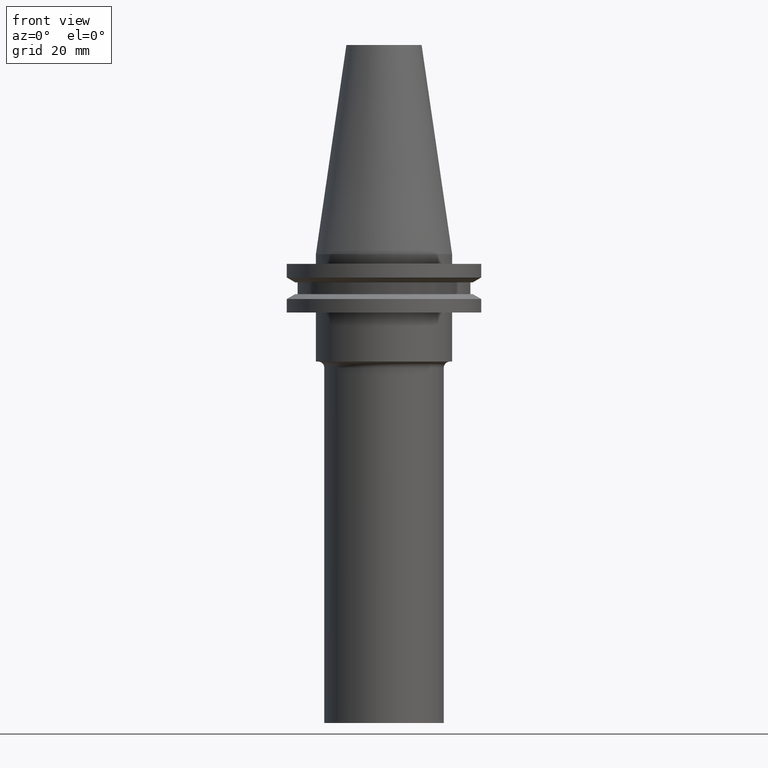
[diagram: clean part render]
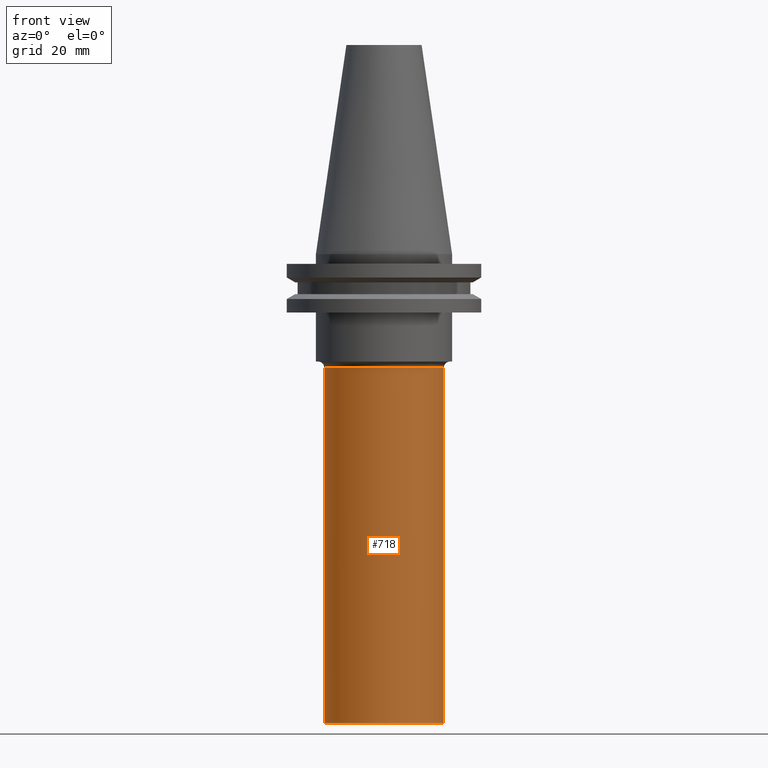
[diagram: same view with one face highlighted and labeled with its STEP entity id]
A machine part, front view. The second image highlights one B-rep face of the part: STEP entity #718.
In plain terms, the highlighted cylindrical surface (partial cylindrical patch) has radius 19.5 mm, axis along (-0, -0, 1).
Its self-contained STEP definition (entity closure, byte-faithful):
#3 = VERTEX_POINT ( 'NONE', #62 ) ;
#33 = VERTEX_POINT ( 'NONE', #738 ) ;
#48 = EDGE_LOOP ( 'NONE', ( #750, #103, #240, #532 ) ) ;
#62 = CARTESIAN_POINT ( 'NONE',  ( -19.50000000000000000, 2.388061258337338939E-15, -153.0000000000000000 ) ) ;
#81 = DIRECTION ( 'NONE',  ( 1.000000000000000000, 0.000000000000000000, 0.000000000000000000 ) ) ;
#103 = ORIENTED_EDGE ( 'NONE', *, *, #753, .T. ) ;
#122 = DIRECTION ( 'NONE',  ( -0.000000000000000000, -0.000000000000000000, 1.000000000000000000 ) ) ;
#151 = VECTOR ( 'NONE', #289, 1000.000000000000000 ) ;
#156 = DIRECTION ( 'NONE',  ( 1.000000000000000000, 0.000000000000000000, 0.000000000000000000 ) ) ;
#157 = EDGE_CURVE ( 'NONE', #3, #33, #463, .T. ) ;
#161 = CARTESIAN_POINT ( 'NONE',  ( -19.50000000000000000, 2.388061258337338939E-15, 0.000000000000000000 ) ) ;
#164 = CARTESIAN_POINT ( 'NONE',  ( 19.50000000000000000, 0.000000000000000000, -37.04999999999999716 ) ) ;
#169 = CYLINDRICAL_SURFACE ( 'NONE', #381, 19.50000000000000000 ) ;
#189 = EDGE_CURVE ( 'NONE', #33, #577, #361, .T. ) ;
#240 = ORIENTED_EDGE ( 'NONE', *, *, #322, .T. ) ;
#244 = LINE ( 'NONE', #744, #293 ) ;
#246 = DIRECTION ( 'NONE',  ( -0.000000000000000000, -0.000000000000000000, 1.000000000000000000 ) ) ;
#258 = AXIS2_PLACEMENT_3D ( 'NONE', #259, #555, #81 ) ;
#259 = CARTESIAN_POINT ( 'NONE',  ( 0.000000000000000000, 0.000000000000000000, -153.0000000000000000 ) ) ;
#285 = DIRECTION ( 'NONE',  ( -0.000000000000000000, -0.000000000000000000, 1.000000000000000000 ) ) ;
#289 = DIRECTION ( 'NONE',  ( -0.000000000000000000, -0.000000000000000000, 1.000000000000000000 ) ) ;
#293 = VECTOR ( 'NONE', #122, 1000.000000000000000 ) ;
#322 = EDGE_CURVE ( 'NONE', #556, #577, #244, .T. ) ;
#361 = CIRCLE ( 'NONE', #594, 19.50000000000000000 ) ;
#381 = AXIS2_PLACEMENT_3D ( 'NONE', #550, #246, #774 ) ;
#463 = LINE ( 'NONE', #161, #151 ) ;
#466 = CARTESIAN_POINT ( 'NONE',  ( 0.000000000000000000, 0.000000000000000000, -37.04999999999999716 ) ) ;
#522 = CARTESIAN_POINT ( 'NONE',  ( 19.50000000000000000, 0.000000000000000000, -153.0000000000000000 ) ) ;
#532 = ORIENTED_EDGE ( 'NONE', *, *, #189, .F. ) ;
#550 = CARTESIAN_POINT ( 'NONE',  ( 0.000000000000000000, 0.000000000000000000, 0.000000000000000000 ) ) ;
#555 = DIRECTION ( 'NONE',  ( -0.000000000000000000, -0.000000000000000000, 1.000000000000000000 ) ) ;
#556 = VERTEX_POINT ( 'NONE', #522 ) ;
#577 = VERTEX_POINT ( 'NONE', #164 ) ;
#594 = AXIS2_PLACEMENT_3D ( 'NONE', #466, #285, #156 ) ;
#598 = CIRCLE ( 'NONE', #258, 19.50000000000000000 ) ;
#602 = FACE_OUTER_BOUND ( 'NONE', #48, .T. ) ;
#718 = ADVANCED_FACE ( 'NONE', ( #602 ), #169, .T. ) ;
#738 = CARTESIAN_POINT ( 'NONE',  ( -19.50000000000000000, 2.388061258337338939E-15, -37.04999999999999716 ) ) ;
#744 = CARTESIAN_POINT ( 'NONE',  ( 19.50000000000000000, 0.000000000000000000, 0.000000000000000000 ) ) ;
#750 = ORIENTED_EDGE ( 'NONE', *, *, #157, .F. ) ;
#753 = EDGE_CURVE ( 'NONE', #3, #556, #598, .T. ) ;
#774 = DIRECTION ( 'NONE',  ( 1.000000000000000000, 0.000000000000000000, 0.000000000000000000 ) ) ;